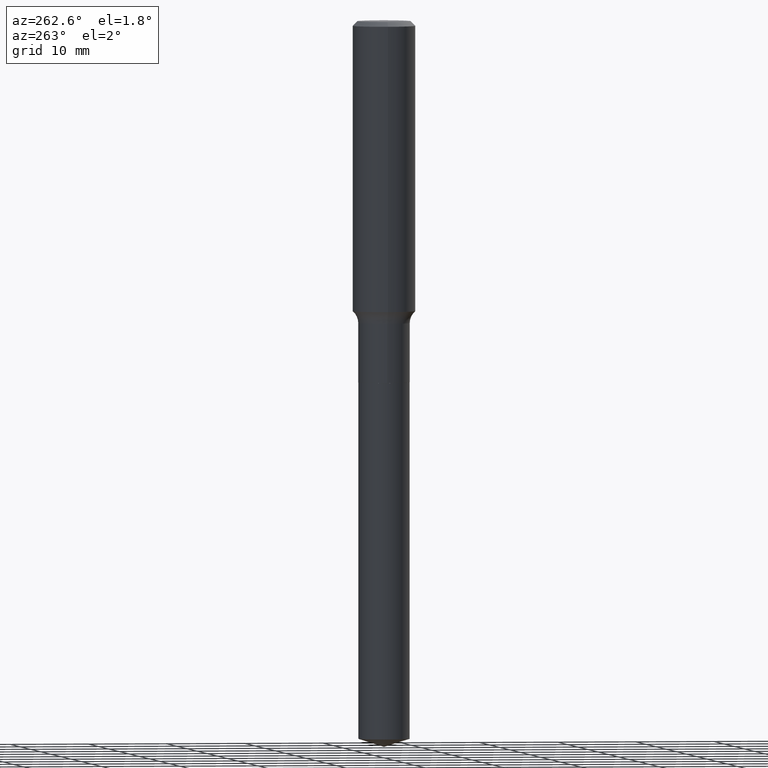
[diagram: clean part render]
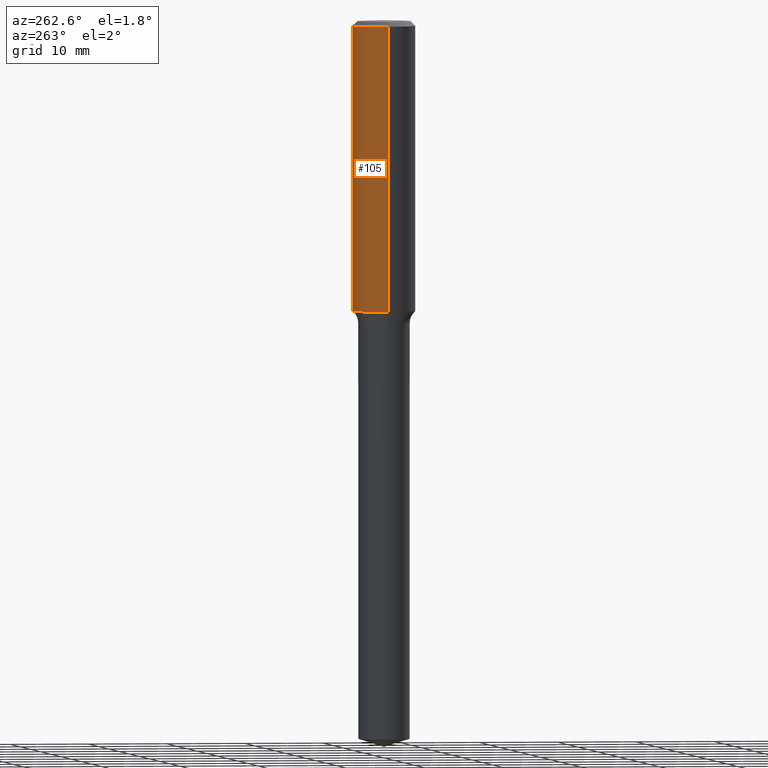
[diagram: same view with one face highlighted and labeled with its STEP entity id]
A machine part, auxiliary view. The second image highlights one B-rep face of the part: STEP entity #105.
In plain terms, the highlighted cylindrical surface (edge-blend (fillet) strip) has radius 3.9688 mm, axis along (-0, 0, 1).
Its self-contained STEP definition (entity closure, byte-faithful):
#9 = CARTESIAN_POINT ( 'NONE',  ( -0.1562500000000000000, -1.459648067697439575E-15, -0.02343750000000014225 ) ) ;
#24 = DIRECTION ( 'NONE',  ( 1.000000000000000000, -6.982962677686266711E-15, 0.000000000000000000 ) ) ;
#32 = AXIS2_PLACEMENT_3D ( 'NONE', #252, #100, #285 ) ;
#45 = EDGE_LOOP ( 'NONE', ( #55, #478, #177, #353 ) ) ;
#55 = ORIENTED_EDGE ( 'NONE', *, *, #142, .T. ) ;
#59 = FACE_OUTER_BOUND ( 'NONE', #45, .T. ) ;
#60 = CARTESIAN_POINT ( 'NONE',  ( 5.731567514496448931E-31, -8.183159387913672688E-17, -0.02343750000000014225 ) ) ;
#72 = VERTEX_POINT ( 'NONE', #365 ) ;
#84 = CARTESIAN_POINT ( 'NONE',  ( 0.1562500000000000833, -1.091087918388479765E-15, 7.619026212181153180E-30 ) ) ;
#97 = CIRCLE ( 'NONE', #375, 0.1562500000000000000 ) ;
#100 = DIRECTION ( 'NONE',  ( -2.445468806185136597E-29, 3.491481338843145583E-15, 1.000000000000000000 ) ) ;
#103 = LINE ( 'NONE', #451, #212 ) ;
#105 = ADVANCED_FACE ( 'NONE', ( #59 ), #170, .T. ) ;
#122 = VERTEX_POINT ( 'NONE', #168 ) ;
#142 = EDGE_CURVE ( 'NONE', #72, #438, #226, .T. ) ;
#163 = CARTESIAN_POINT ( 'NONE',  ( -0.1562500000000001665, -3.947687566140898470E-15, -1.448643168873967380 ) ) ;
#165 = EDGE_CURVE ( 'NONE', #122, #388, #97, .T. ) ;
#168 = CARTESIAN_POINT ( 'NONE',  ( 0.1562500000000000000, -1.172919512267615999E-15, -0.02343750000000014225 ) ) ;
#170 = CYLINDRICAL_SURFACE ( 'NONE', #32, 0.1562500000000000833 ) ;
#177 = ORIENTED_EDGE ( 'NONE', *, *, #165, .F. ) ;
#196 = LINE ( 'NONE', #84, #342 ) ;
#210 = DIRECTION ( 'NONE',  ( -2.445468806185136597E-29, 3.491481338843145583E-15, 1.000000000000000000 ) ) ;
#212 = VECTOR ( 'NONE', #412, 39.37007874015748143 ) ;
#226 = CIRCLE ( 'NONE', #483, 0.1562500000000001388 ) ;
#247 = DIRECTION ( 'NONE',  ( 1.000000000000000000, -6.982962677686269077E-15, 0.000000000000000000 ) ) ;
#252 = CARTESIAN_POINT ( 'NONE',  ( 0.000000000000000000, 0.000000000000000000, 0.000000000000000000 ) ) ;
#267 = EDGE_CURVE ( 'NONE', #438, #388, #103, .T. ) ;
#285 = DIRECTION ( 'NONE',  ( 1.000000000000000000, -6.982962677686266711E-15, 4.876176775795935232E-29 ) ) ;
#303 = EDGE_CURVE ( 'NONE', #72, #122, #196, .T. ) ;
#342 = VECTOR ( 'NONE', #427, 39.37007874015748143 ) ;
#353 = ORIENTED_EDGE ( 'NONE', *, *, #303, .F. ) ;
#365 = CARTESIAN_POINT ( 'NONE',  ( 0.1562500000000001665, -6.148998509154537339E-15, -1.448643168873967380 ) ) ;
#375 = AXIS2_PLACEMENT_3D ( 'NONE', #60, #210, #24 ) ;
#388 = VERTEX_POINT ( 'NONE', #9 ) ;
#403 = CARTESIAN_POINT ( 'NONE',  ( 3.542611680774473923E-29, -5.057910590766056588E-15, -1.448643168873967380 ) ) ;
#412 = DIRECTION ( 'NONE',  ( -2.445468806185136877E-29, 3.491481338843145188E-15, 1.000000000000000000 ) ) ;
#427 = DIRECTION ( 'NONE',  ( -2.445468806185136877E-29, 3.491481338843145188E-15, 1.000000000000000000 ) ) ;
#438 = VERTEX_POINT ( 'NONE', #163 ) ;
#442 = DIRECTION ( 'NONE',  ( -2.445468806185136597E-29, 3.491481338843145583E-15, 1.000000000000000000 ) ) ;
#451 = CARTESIAN_POINT ( 'NONE',  ( -0.1562500000000000833, 1.110223024625157132E-15, -7.685836078523293962E-30 ) ) ;
#478 = ORIENTED_EDGE ( 'NONE', *, *, #267, .T. ) ;
#483 = AXIS2_PLACEMENT_3D ( 'NONE', #403, #442, #247 ) ;